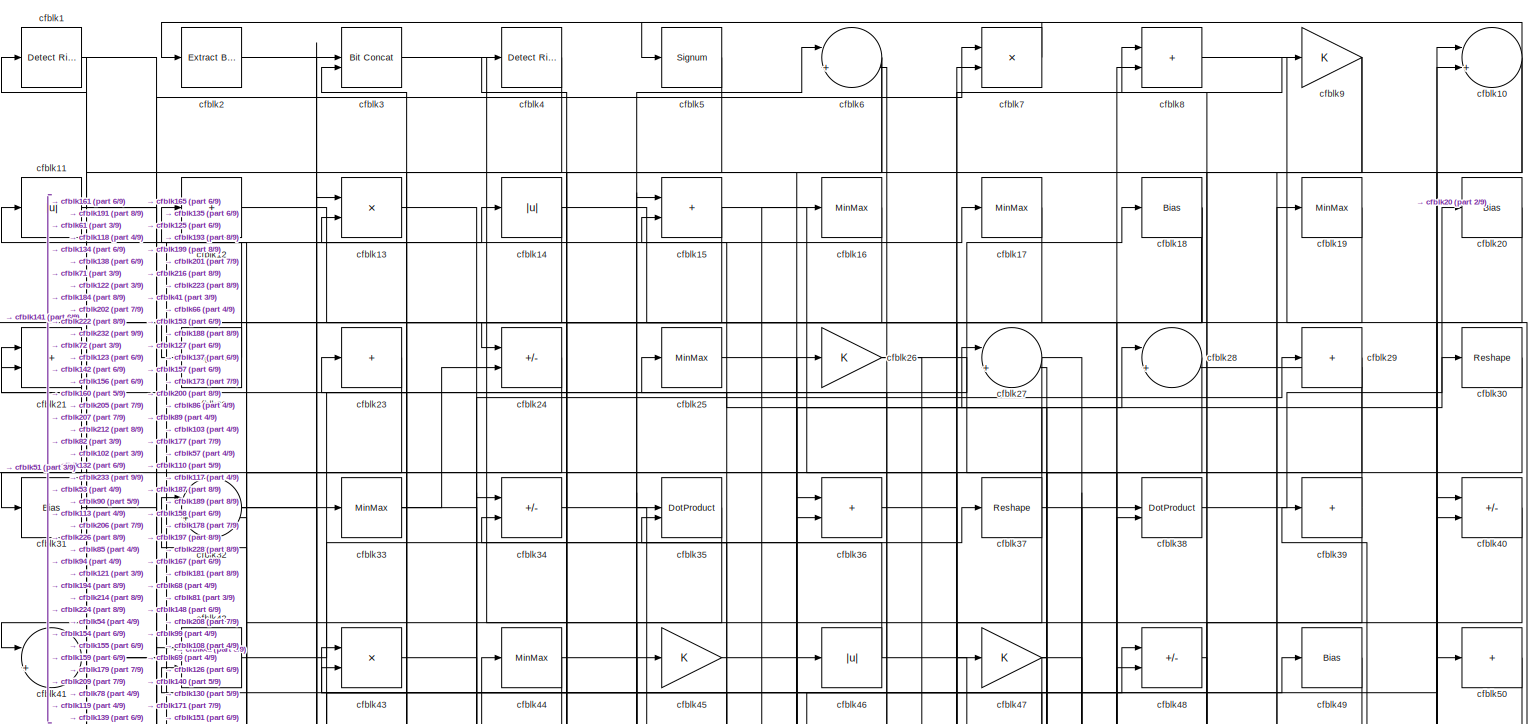
[diagram: root canvas - part 1/9, full width, top band]
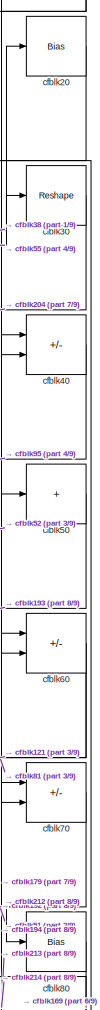
[diagram: root canvas - part 2/9, top right region]
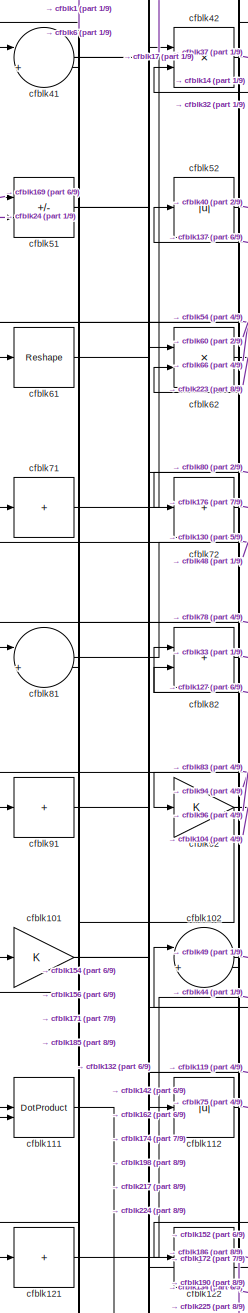
[diagram: root canvas - part 3/9, middle left region]
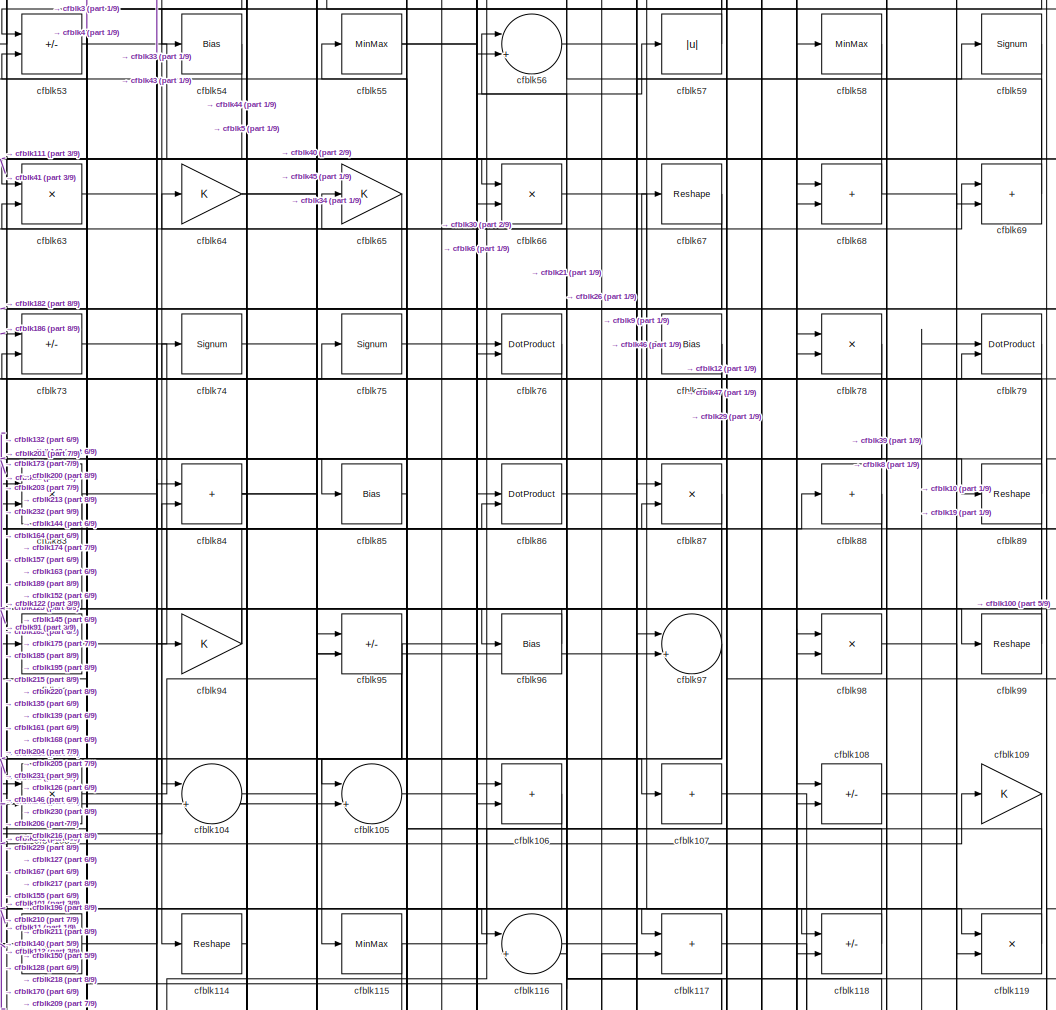
[diagram: root canvas - part 4/9, central region]
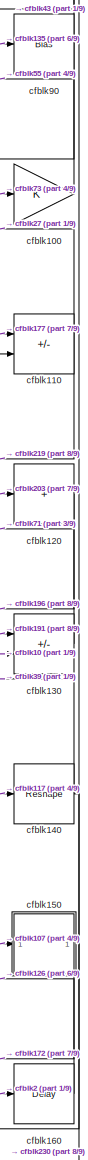
[diagram: root canvas - part 5/9, middle right region]
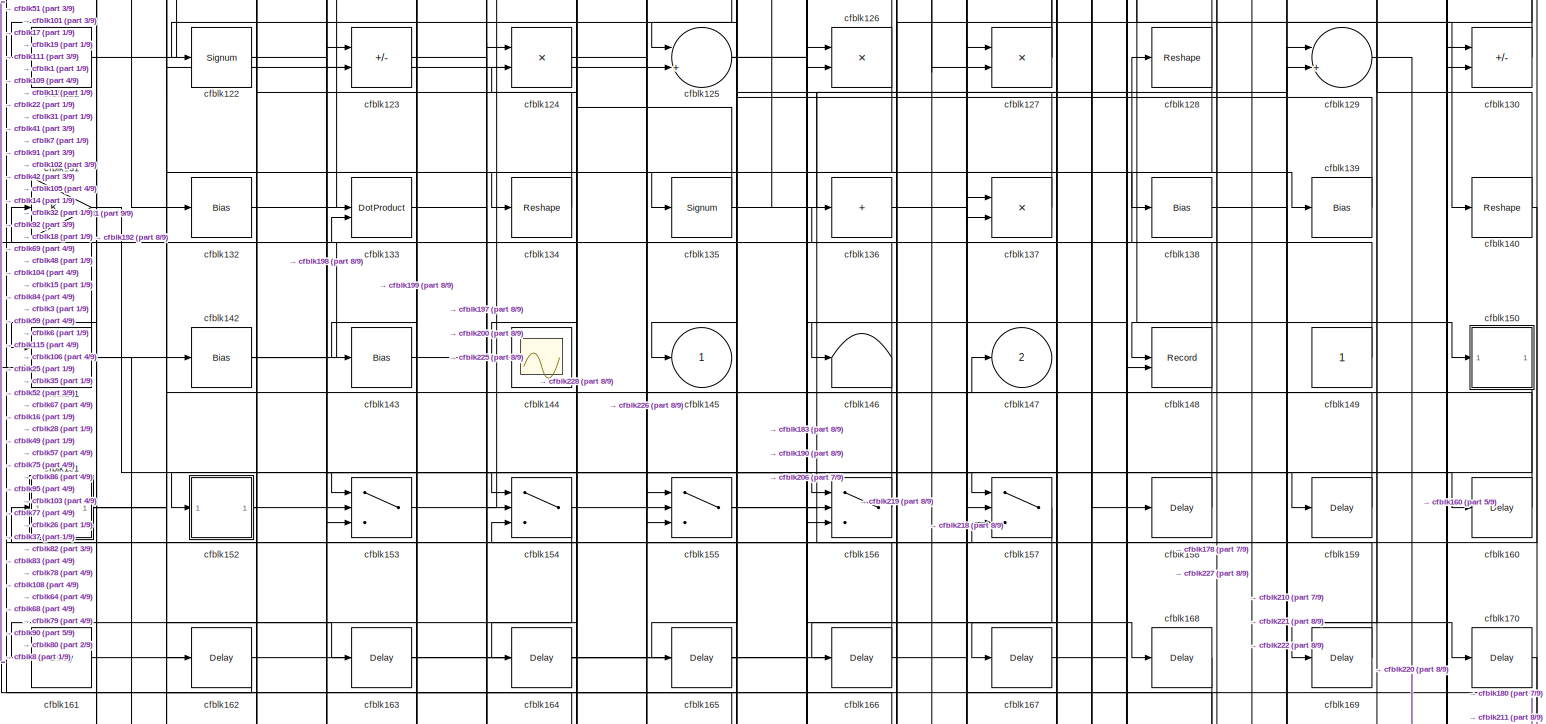
[diagram: root canvas - part 6/9, full width, middle band]
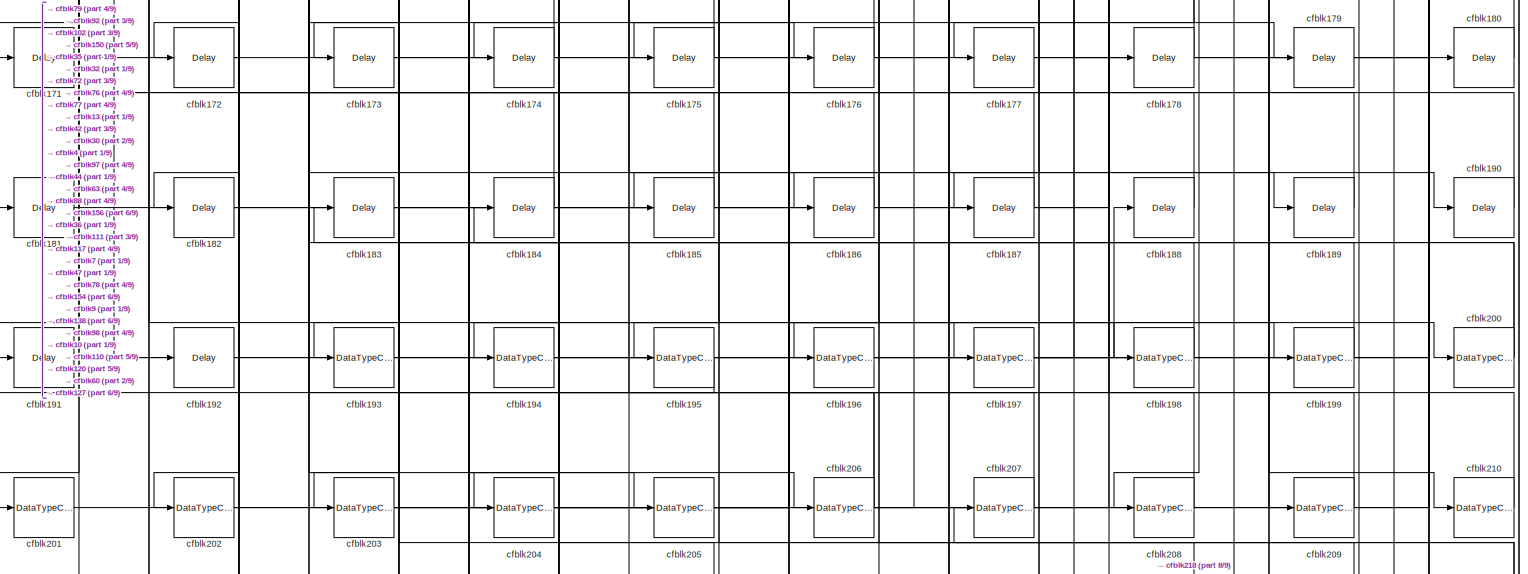
[diagram: root canvas - part 7/9, full width, bottom band]
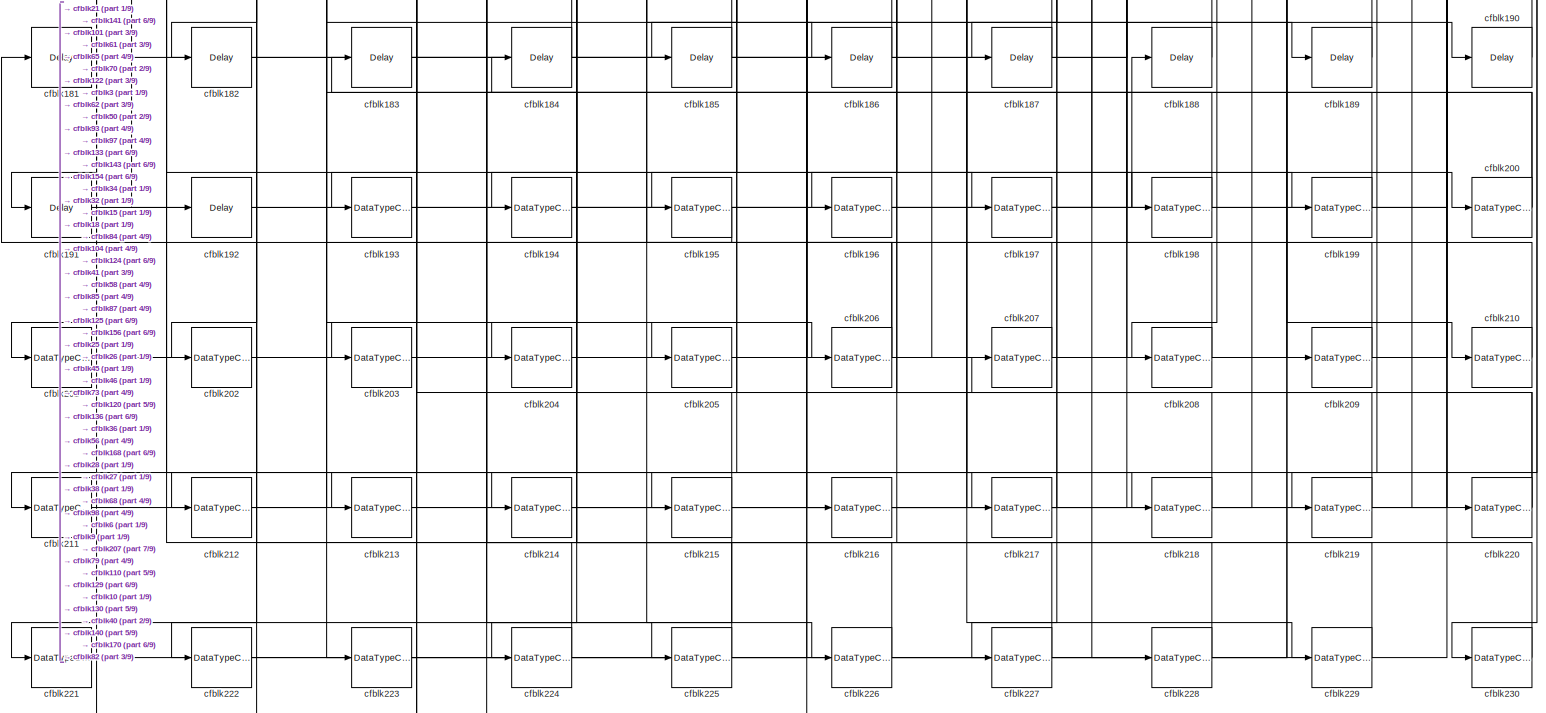
[diagram: root canvas - part 8/9, full width, bottom band]
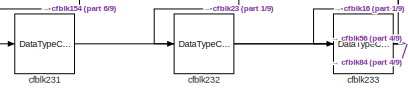
[diagram: root canvas - part 9/9, bottom left region]
MODEL slx_fc85e3098e70
KIND model
CONFIG AbsTol = auto
CONFIG EnableMultiTasking = off
CONFIG FixedStep = auto
CONFIG MaxStep = auto
CONFIG MinStep = auto
CONFIG RelTol = 1e-3
CONFIG SampleTimeConstraint = Unconstrained
CONFIG SolverName = VariableStepAuto
CONFIG StartTime = 0.0
CONFIG StopTime = 10.0
BLOCK [Reference] cfblk1  REF=hdlsllib/Logic and Bit
Operations/Detect Rise
Positive
  SourceBlock = hdlsllib/Logic and Bit\nOperations/Detect Rise\nPositive
  SourceType = Detect Rise Positive
BLOCK [Sum] cfblk10
  Inputs = |++
BLOCK [Gain] cfblk100
BLOCK [Gain] cfblk101
BLOCK [Sum] cfblk102
  Inputs = |++
BLOCK [Product] cfblk103
  Inputs = */
  RndMeth = Zero
  SaturateOnIntegerOverflow = on
BLOCK [Sum] cfblk104
  Inputs = |++
BLOCK [Sum] cfblk105
  Inputs = |++
BLOCK [Sum] cfblk106
  IconShape = rectangular
BLOCK [Sum] cfblk107
  IconShape = rectangular
  Inputs = +
BLOCK [Sum] cfblk108
  IconShape = rectangular
  Inputs = +-
BLOCK [Gain] cfblk109
BLOCK [Abs] cfblk11
  SaturateOnIntegerOverflow = off
BLOCK [Sum] cfblk110
  IconShape = rectangular
  Inputs = +-
BLOCK [DotProduct] cfblk111
  OutDataTypeStr = Inherit: Inherit via internal rule
BLOCK [Abs] cfblk112
  SaturateOnIntegerOverflow = off
BLOCK [Signum] cfblk113
BLOCK [Reshape] cfblk114
BLOCK [MinMax] cfblk115
BLOCK [Sum] cfblk116
  Inputs = |++
BLOCK [Sum] cfblk117
  IconShape = rectangular
BLOCK [Sum] cfblk118
  IconShape = rectangular
  Inputs = +-
BLOCK [Product] cfblk119
  Inputs = */
  RndMeth = Zero
  SaturateOnIntegerOverflow = on
BLOCK [Sum] cfblk12
  IconShape = rectangular
  Inputs = +
BLOCK [Sum] cfblk120
  IconShape = rectangular
  Inputs = +
BLOCK [Sum] cfblk121
  IconShape = rectangular
  Inputs = +
BLOCK [Signum] cfblk122
BLOCK [Sum] cfblk123
  IconShape = rectangular
  Inputs = +-
BLOCK [Product] cfblk124
  Inputs = */
  RndMeth = Zero
  SaturateOnIntegerOverflow = on
BLOCK [Sum] cfblk125
  Inputs = |++
BLOCK [Product] cfblk126
  Inputs = */
  RndMeth = Zero
  SaturateOnIntegerOverflow = on
BLOCK [Product] cfblk127
  Inputs = */
  RndMeth = Zero
  SaturateOnIntegerOverflow = on
BLOCK [Reshape] cfblk128
BLOCK [Sum] cfblk129
  Inputs = |++
BLOCK [Product] cfblk13
  Inputs = */
  RndMeth = Zero
  SaturateOnIntegerOverflow = on
BLOCK [Sum] cfblk130
  IconShape = rectangular
  Inputs = +-
BLOCK [Gain] cfblk131
BLOCK [Bias] cfblk132
  Bias = 0.0
  SaturateOnIntegerOverflow = off
BLOCK [DotProduct] cfblk133
  OutDataTypeStr = Inherit: Inherit via internal rule
BLOCK [Reshape] cfblk134
BLOCK [Signum] cfblk135
BLOCK [Sum] cfblk136
  IconShape = rectangular
  Inputs = +
BLOCK [Product] cfblk137
  Inputs = */
  RndMeth = Zero
  SaturateOnIntegerOverflow = on
BLOCK [Bias] cfblk138
  Bias = 0.0
  SaturateOnIntegerOverflow = off
BLOCK [Bias] cfblk139
  Bias = 0.0
  SaturateOnIntegerOverflow = off
BLOCK [Abs] cfblk14
  SaturateOnIntegerOverflow = off
BLOCK [Reshape] cfblk140
BLOCK [Sum] cfblk141
  IconShape = rectangular
BLOCK [Bias] cfblk142
  Bias = 0.0
  SaturateOnIntegerOverflow = off
BLOCK [Bias] cfblk143
  Bias = 0.0
  SaturateOnIntegerOverflow = off
BLOCK [Scope] cfblk144
  Floating = off
  NumInputPorts = 1
  ScopeSpecificationString = Simulink.scopes.TimeScopeBlockCfg('CurrentConfiguration', extmgr.ConfigurationSet(extmgr.Configuration('Core','General UI',true),extmgr.Configuration('Core','Source UI',true),extmgr.Configuration('Sources','WiredSimulink',true,'DataLoggingVariableName','ScopeData2','DataLoggingSaveFormat','Array','DataLoggingLimitDataPoints',true,'DataLoggingDecimation','1'),extmgr.Configuration('Visuals','Time Do...<+868ch>
BLOCK [Outport] cfblk145
  VectorParamsAs1DForOutWhenUnconnected = off
BLOCK [Terminator] cfblk146
BLOCK [Outport] cfblk147
  Port = 2
  VectorParamsAs1DForOutWhenUnconnected = off
BLOCK [Record] cfblk148
  CompatibilityTag = XY
  FileSettingsInternal = {"entries":[{"content":{"excelSettings":{"content":{},"type":"Streamout.ExcelSettings"}},"type":"Streamout.FileSettingStorage","uuid":""}],"packageUris":["http:\/\/schema.mathworks.com\/mf0\/streamout_blocks\/R2020a"],"version":"1.0"}
  Layout = [1 1]
  SignalsInternal = {"entries":[{"content":{"signals":[{"content":{"blockPath":[],"dimensions":[1],"domain":"","lineColor":"#a2142f","plots":[1],"port":1,"signalID":1628,"signalName":"XY Graph:1"},"type":"RecordBlkView.Signal","uuid":""},{"content":{"blockPath":[],"dimensions":[1],"domain":"","lineColor":"#139fff","plots":[1],"port":2,"signalID":1631,"signalName":"XY Graph:2"},"type":"RecordBlkView.Signal","uuid":""}...<+146ch>
  VisualizationBindings = {"xyplotplugin":{"info":[{"series":[{"bindingParametersList":[{"parameter":"X-Axis","signalID":1628,"signalName":"XY Graph:1"},{"parameter":"Y-Axis","signalID":1631,"signalName":"XY Graph:2"}],"seriesID":13576}],"subplotID":1}]}}
  st = -1
BLOCK [Constant] cfblk149
  SampleTime = -1
BLOCK [Sum] cfblk15
  IconShape = rectangular
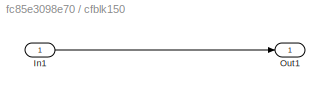
BLOCK [SubSystem] cfblk150
  LibrarySourceBlock = hdlsllib/Ports &\nSubsystems/Subsystem
BLOCK [Inport] cfblk150/In1
BLOCK [Outport] cfblk150/Out1
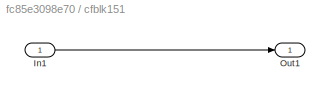
BLOCK [SubSystem] cfblk151
  LibrarySourceBlock = hdlsllib/Ports &\nSubsystems/Subsystem
BLOCK [Inport] cfblk151/In1
BLOCK [Outport] cfblk151/Out1
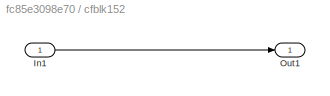
BLOCK [SubSystem] cfblk152
  LibrarySourceBlock = hdlsllib/Ports &\nSubsystems/Subsystem
BLOCK [Inport] cfblk152/In1
BLOCK [Outport] cfblk152/Out1
BLOCK [Switch] cfblk153
  InputSameDT = off
  SaturateOnIntegerOverflow = off
BLOCK [Switch] cfblk154
  InputSameDT = off
  SaturateOnIntegerOverflow = off
BLOCK [Switch] cfblk155
  InputSameDT = off
  SaturateOnIntegerOverflow = off
BLOCK [Switch] cfblk156
  InputSameDT = off
  SaturateOnIntegerOverflow = off
BLOCK [Switch] cfblk157
  InputSameDT = off
  SaturateOnIntegerOverflow = off
BLOCK [Delay] cfblk158
  InputPortMap = u0
  SampleTime = 1
BLOCK [Delay] cfblk159
  InputPortMap = u0
  SampleTime = 1
BLOCK [MinMax] cfblk16
BLOCK [Delay] cfblk160
  InputPortMap = u0
  SampleTime = 1
BLOCK [Delay] cfblk161
  InputPortMap = u0
  SampleTime = 1
BLOCK [Delay] cfblk162
  InputPortMap = u0
  SampleTime = 1
BLOCK [Delay] cfblk163
  InputPortMap = u0
  SampleTime = 1
BLOCK [Delay] cfblk164
  InputPortMap = u0
  SampleTime = 1
BLOCK [Delay] cfblk165
  InputPortMap = u0
  SampleTime = 1
BLOCK [Delay] cfblk166
  InputPortMap = u0
  SampleTime = 1
BLOCK [Delay] cfblk167
  InputPortMap = u0
  SampleTime = 1
BLOCK [Delay] cfblk168
  InputPortMap = u0
  SampleTime = 1
BLOCK [Delay] cfblk169
  InputPortMap = u0
  SampleTime = 1
BLOCK [MinMax] cfblk17
BLOCK [Delay] cfblk170
  InputPortMap = u0
  SampleTime = 1
BLOCK [Delay] cfblk171
  InputPortMap = u0
  SampleTime = 1
BLOCK [Delay] cfblk172
  InputPortMap = u0
  SampleTime = 1
BLOCK [Delay] cfblk173
  InputPortMap = u0
  SampleTime = 1
BLOCK [Delay] cfblk174
  InputPortMap = u0
  SampleTime = 1
BLOCK [Delay] cfblk175
  InputPortMap = u0
  SampleTime = 1
BLOCK [Delay] cfblk176
  InputPortMap = u0
  SampleTime = 1
BLOCK [Delay] cfblk177
  InputPortMap = u0
  SampleTime = 1
BLOCK [Delay] cfblk178
  InputPortMap = u0
  SampleTime = 1
BLOCK [Delay] cfblk179
  InputPortMap = u0
  SampleTime = 1
BLOCK [Bias] cfblk18
  Bias = 0.0
  SaturateOnIntegerOverflow = off
BLOCK [Delay] cfblk180
  InputPortMap = u0
  SampleTime = 1
BLOCK [Delay] cfblk181
  InputPortMap = u0
  SampleTime = 1
BLOCK [Delay] cfblk182
  InputPortMap = u0
  SampleTime = 1
BLOCK [Delay] cfblk183
  InputPortMap = u0
  SampleTime = 1
BLOCK [Delay] cfblk184
  InputPortMap = u0
  SampleTime = 1
BLOCK [Delay] cfblk185
  InputPortMap = u0
  SampleTime = 1
BLOCK [Delay] cfblk186
  InputPortMap = u0
  SampleTime = 1
BLOCK [Delay] cfblk187
  InputPortMap = u0
  SampleTime = 1
BLOCK [Delay] cfblk188
  InputPortMap = u0
  SampleTime = 1
BLOCK [Delay] cfblk189
  InputPortMap = u0
  SampleTime = 1
BLOCK [MinMax] cfblk19
BLOCK [Delay] cfblk190
  InputPortMap = u0
  SampleTime = 1
BLOCK [Delay] cfblk191
  InputPortMap = u0
  SampleTime = 1
BLOCK [Delay] cfblk192
  InputPortMap = u0
  SampleTime = 1
BLOCK [DataTypeConversion] cfblk193
  OutDataTypeStr = uint8
  RndMeth = Floor
  SaturateOnIntegerOverflow = off
BLOCK [DataTypeConversion] cfblk194
  OutDataTypeStr = uint8
  RndMeth = Floor
  SaturateOnIntegerOverflow = off
BLOCK [DataTypeConversion] cfblk195
  OutDataTypeStr = uint8
  RndMeth = Floor
  SaturateOnIntegerOverflow = off
BLOCK [DataTypeConversion] cfblk196
  OutDataTypeStr = uint8
  RndMeth = Floor
  SaturateOnIntegerOverflow = off
BLOCK [DataTypeConversion] cfblk197
  RndMeth = Floor
  SaturateOnIntegerOverflow = off
BLOCK [DataTypeConversion] cfblk198
  OutDataTypeStr = uint8
  RndMeth = Floor
  SaturateOnIntegerOverflow = off
BLOCK [DataTypeConversion] cfblk199
  OutDataTypeStr = uint8
  RndMeth = Floor
  SaturateOnIntegerOverflow = off
BLOCK [Reference] cfblk2  REF=simulink/Logic and Bit
Operations/Extract Bits
  LibrarySourceBlock = hdlsllib/Logic and Bit\nOperations/Extract Bits
  SourceBlock = simulink/Logic and Bit\nOperations/Extract Bits
  SourceType = Extract Bits
BLOCK [Bias] cfblk20
  Bias = 0.0
  SaturateOnIntegerOverflow = off
BLOCK [DataTypeConversion] cfblk200
  RndMeth = Floor
  SaturateOnIntegerOverflow = off
BLOCK [DataTypeConversion] cfblk201
  OutDataTypeStr = uint8
  RndMeth = Floor
  SaturateOnIntegerOverflow = off
BLOCK [DataTypeConversion] cfblk202
  OutDataTypeStr = uint8
  RndMeth = Floor
  SaturateOnIntegerOverflow = off
BLOCK [DataTypeConversion] cfblk203
  RndMeth = Floor
  SaturateOnIntegerOverflow = off
BLOCK [DataTypeConversion] cfblk204
  OutDataTypeStr = uint8
  RndMeth = Floor
  SaturateOnIntegerOverflow = off
BLOCK [DataTypeConversion] cfblk205
  OutDataTypeStr = uint8
  RndMeth = Floor
  SaturateOnIntegerOverflow = off
BLOCK [DataTypeConversion] cfblk206
  RndMeth = Floor
  SaturateOnIntegerOverflow = off
BLOCK [DataTypeConversion] cfblk207
  OutDataTypeStr = uint8
  RndMeth = Floor
  SaturateOnIntegerOverflow = off
BLOCK [DataTypeConversion] cfblk208
  OutDataTypeStr = uint8
  RndMeth = Floor
  SaturateOnIntegerOverflow = off
BLOCK [DataTypeConversion] cfblk209
  OutDataTypeStr = uint8
  RndMeth = Floor
  SaturateOnIntegerOverflow = off
BLOCK [Sum] cfblk21
  IconShape = rectangular
BLOCK [DataTypeConversion] cfblk210
  OutDataTypeStr = uint8
  RndMeth = Floor
  SaturateOnIntegerOverflow = off
BLOCK [DataTypeConversion] cfblk211
  OutDataTypeStr = uint8
  RndMeth = Floor
  SaturateOnIntegerOverflow = off
BLOCK [DataTypeConversion] cfblk212
  OutDataTypeStr = uint8
  RndMeth = Floor
  SaturateOnIntegerOverflow = off
BLOCK [DataTypeConversion] cfblk213
  OutDataTypeStr = uint8
  RndMeth = Floor
  SaturateOnIntegerOverflow = off
BLOCK [DataTypeConversion] cfblk214
  OutDataTypeStr = uint8
  RndMeth = Floor
  SaturateOnIntegerOverflow = off
BLOCK [DataTypeConversion] cfblk215
  RndMeth = Floor
  SaturateOnIntegerOverflow = off
BLOCK [DataTypeConversion] cfblk216
  OutDataTypeStr = uint8
  RndMeth = Floor
  SaturateOnIntegerOverflow = off
BLOCK [DataTypeConversion] cfblk217
  OutDataTypeStr = uint8
  RndMeth = Floor
  SaturateOnIntegerOverflow = off
BLOCK [DataTypeConversion] cfblk218
  RndMeth = Floor
  SaturateOnIntegerOverflow = off
BLOCK [DataTypeConversion] cfblk219
  OutDataTypeStr = uint8
  RndMeth = Floor
  SaturateOnIntegerOverflow = off
BLOCK [Signum] cfblk22
BLOCK [DataTypeConversion] cfblk220
  RndMeth = Floor
  SaturateOnIntegerOverflow = off
BLOCK [DataTypeConversion] cfblk221
  OutDataTypeStr = uint8
  RndMeth = Floor
  SaturateOnIntegerOverflow = off
BLOCK [DataTypeConversion] cfblk222
  OutDataTypeStr = uint8
  RndMeth = Floor
  SaturateOnIntegerOverflow = off
BLOCK [DataTypeConversion] cfblk223
  OutDataTypeStr = uint8
  RndMeth = Floor
  SaturateOnIntegerOverflow = off
BLOCK [DataTypeConversion] cfblk224
  OutDataTypeStr = uint8
  RndMeth = Floor
  SaturateOnIntegerOverflow = off
BLOCK [DataTypeConversion] cfblk225
  OutDataTypeStr = uint8
  RndMeth = Floor
  SaturateOnIntegerOverflow = off
BLOCK [DataTypeConversion] cfblk226
  RndMeth = Floor
  SaturateOnIntegerOverflow = off
BLOCK [DataTypeConversion] cfblk227
  OutDataTypeStr = uint8
  RndMeth = Floor
  SaturateOnIntegerOverflow = off
BLOCK [DataTypeConversion] cfblk228
  OutDataTypeStr = uint8
  RndMeth = Floor
  SaturateOnIntegerOverflow = off
BLOCK [DataTypeConversion] cfblk229
  OutDataTypeStr = uint8
  RndMeth = Floor
  SaturateOnIntegerOverflow = off
BLOCK [Sum] cfblk23
  IconShape = rectangular
  Inputs = +
BLOCK [DataTypeConversion] cfblk230
  OutDataTypeStr = uint8
  RndMeth = Floor
  SaturateOnIntegerOverflow = off
BLOCK [DataTypeConversion] cfblk231
  OutDataTypeStr = uint8
  RndMeth = Floor
  SaturateOnIntegerOverflow = off
BLOCK [DataTypeConversion] cfblk232
  OutDataTypeStr = uint8
  RndMeth = Floor
  SaturateOnIntegerOverflow = off
BLOCK [DataTypeConversion] cfblk233
  OutDataTypeStr = uint8
  RndMeth = Floor
  SaturateOnIntegerOverflow = off
BLOCK [Sum] cfblk24
  IconShape = rectangular
  Inputs = +-
BLOCK [MinMax] cfblk25
BLOCK [Gain] cfblk26
BLOCK [Sum] cfblk27
  Inputs = |++
BLOCK [Sum] cfblk28
  Inputs = |++
BLOCK [Sum] cfblk29
  IconShape = rectangular
  Inputs = +
BLOCK [Reference] cfblk3  REF=hdlsllib/Logic and Bit
Operations/Bit Concat
  SourceBlock = hdlsllib/Logic and Bit\nOperations/Bit Concat
  SourceType = Bit Concat
BLOCK [Reshape] cfblk30
BLOCK [Bias] cfblk31
  Bias = 0.0
  SaturateOnIntegerOverflow = off
BLOCK [Sum] cfblk32
  Inputs = |++
BLOCK [MinMax] cfblk33
BLOCK [Sum] cfblk34
  IconShape = rectangular
  Inputs = +-
BLOCK [DotProduct] cfblk35
  OutDataTypeStr = Inherit: Inherit via internal rule
BLOCK [Sum] cfblk36
  IconShape = rectangular
BLOCK [Reshape] cfblk37
BLOCK [DotProduct] cfblk38
  OutDataTypeStr = Inherit: Inherit via internal rule
BLOCK [Sum] cfblk39
  IconShape = rectangular
  Inputs = +
BLOCK [Reference] cfblk4  REF=hdlsllib/Logic and Bit
Operations/Detect Rise
Nonnegative
  SourceBlock = hdlsllib/Logic and Bit\nOperations/Detect Rise\nNonnegative
  SourceType = Detect Rise Nonnegative
BLOCK [Sum] cfblk40
  IconShape = rectangular
  Inputs = +-
BLOCK [Sum] cfblk41
  Inputs = |++
BLOCK [Product] cfblk42
  Inputs = */
  RndMeth = Zero
  SaturateOnIntegerOverflow = on
BLOCK [Product] cfblk43
  Inputs = */
  RndMeth = Zero
  SaturateOnIntegerOverflow = on
BLOCK [MinMax] cfblk44
BLOCK [Gain] cfblk45
BLOCK [Abs] cfblk46
  SaturateOnIntegerOverflow = off
BLOCK [Gain] cfblk47
BLOCK [Sum] cfblk48
  IconShape = rectangular
  Inputs = +-
BLOCK [Bias] cfblk49
  Bias = 0.0
  SaturateOnIntegerOverflow = off
BLOCK [Signum] cfblk5
BLOCK [Sum] cfblk50
  IconShape = rectangular
  Inputs = +
BLOCK [Sum] cfblk51
  IconShape = rectangular
  Inputs = +-
BLOCK [Abs] cfblk52
  SaturateOnIntegerOverflow = off
BLOCK [Sum] cfblk53
  IconShape = rectangular
  Inputs = +-
BLOCK [Bias] cfblk54
  Bias = 0.0
  SaturateOnIntegerOverflow = off
BLOCK [MinMax] cfblk55
BLOCK [Sum] cfblk56
  Inputs = |++
BLOCK [Abs] cfblk57
  SaturateOnIntegerOverflow = off
BLOCK [MinMax] cfblk58
BLOCK [Signum] cfblk59
BLOCK [Sum] cfblk6
  Inputs = |++
BLOCK [Sum] cfblk60
  IconShape = rectangular
  Inputs = +-
BLOCK [Reshape] cfblk61
BLOCK [Product] cfblk62
  Inputs = */
  RndMeth = Zero
  SaturateOnIntegerOverflow = on
BLOCK [Product] cfblk63
  Inputs = */
  RndMeth = Zero
  SaturateOnIntegerOverflow = on
BLOCK [Gain] cfblk64
BLOCK [Gain] cfblk65
BLOCK [Product] cfblk66
  Inputs = */
  RndMeth = Zero
  SaturateOnIntegerOverflow = on
BLOCK [Reshape] cfblk67
BLOCK [Sum] cfblk68
  IconShape = rectangular
BLOCK [Sum] cfblk69
  IconShape = rectangular
BLOCK [Product] cfblk7
  Inputs = */
  RndMeth = Zero
  SaturateOnIntegerOverflow = on
BLOCK [Sum] cfblk70
  IconShape = rectangular
  Inputs = +-
BLOCK [Sum] cfblk71
  IconShape = rectangular
  Inputs = +
BLOCK [Sum] cfblk72
  IconShape = rectangular
  Inputs = +
BLOCK [Sum] cfblk73
  IconShape = rectangular
  Inputs = +-
BLOCK [Signum] cfblk74
BLOCK [Signum] cfblk75
BLOCK [DotProduct] cfblk76
  OutDataTypeStr = Inherit: Inherit via internal rule
BLOCK [Bias] cfblk77
  Bias = 0.0
  SaturateOnIntegerOverflow = off
BLOCK [Product] cfblk78
  Inputs = */
  RndMeth = Zero
  SaturateOnIntegerOverflow = on
BLOCK [DotProduct] cfblk79
  OutDataTypeStr = Inherit: Inherit via internal rule
BLOCK [Sum] cfblk8
  IconShape = rectangular
BLOCK [Bias] cfblk80
  Bias = 0.0
  SaturateOnIntegerOverflow = off
BLOCK [Sum] cfblk81
  Inputs = |++
BLOCK [Sum] cfblk82
  IconShape = rectangular
BLOCK [Product] cfblk83
  Inputs = */
  RndMeth = Zero
  SaturateOnIntegerOverflow = on
BLOCK [Sum] cfblk84
  IconShape = rectangular
BLOCK [Bias] cfblk85
  Bias = 0.0
  SaturateOnIntegerOverflow = off
BLOCK [DotProduct] cfblk86
  OutDataTypeStr = Inherit: Inherit via internal rule
BLOCK [Product] cfblk87
  Inputs = */
  RndMeth = Zero
  SaturateOnIntegerOverflow = on
BLOCK [Sum] cfblk88
  IconShape = rectangular
  Inputs = +
BLOCK [Reshape] cfblk89
BLOCK [Gain] cfblk9
BLOCK [Bias] cfblk90
  Bias = 0.0
  SaturateOnIntegerOverflow = off
BLOCK [Sum] cfblk91
  IconShape = rectangular
  Inputs = +
BLOCK [Gain] cfblk92
BLOCK [Bias] cfblk93
  Bias = 0.0
  SaturateOnIntegerOverflow = off
BLOCK [Gain] cfblk94
BLOCK [Sum] cfblk95
  IconShape = rectangular
  Inputs = +-
BLOCK [Bias] cfblk96
  Bias = 0.0
  SaturateOnIntegerOverflow = off
BLOCK [Sum] cfblk97
  Inputs = |++
BLOCK [Product] cfblk98
  Inputs = */
  RndMeth = Zero
  SaturateOnIntegerOverflow = on
BLOCK [Reshape] cfblk99
LINE cfblk100:1 -> cfblk55:1
NET cfblk101:1 -> cfblk119:2, cfblk217:1
LINE cfblk102:1 -> cfblk49:1
LINE cfblk103:1 -> cfblk45:1
LINE cfblk104:1 -> cfblk189:1
LINE cfblk105:1 -> cfblk88:1
LINE cfblk106:1 -> cfblk145:1
LINE cfblk107:1 -> cfblk150:1
LINE cfblk108:1 -> cfblk19:1
LINE cfblk109:1 -> cfblk125:1
NET cfblk10:1 -> cfblk130:2, cfblk2:1, cfblk69:2
NET cfblk110:1 -> cfblk219:1, cfblk27:2
LINE cfblk111:1 -> cfblk132:1
LINE cfblk112:1 -> cfblk75:1
LINE cfblk113:1 -> cfblk29:1
LINE cfblk114:1 -> cfblk74:1
NET cfblk115:1 -> cfblk152:1, cfblk97:1
LINE cfblk116:1 -> cfblk59:1
LINE cfblk117:1 -> cfblk140:1
LINE cfblk118:1 -> cfblk83:1
LINE cfblk119:1 -> cfblk43:1
NET cfblk11:1 -> cfblk118:2, cfblk138:1
LINE cfblk120:1 -> cfblk196:1
LINE cfblk121:1 -> cfblk44:1
NET cfblk122:1 -> cfblk186:1, cfblk32:1
LINE cfblk123:1 -> cfblk159:1
LINE cfblk124:1 -> cfblk226:1
NET cfblk125:1 -> cfblk190:1, cfblk28:1, cfblk57:1
NET cfblk126:1 -> cfblk103:2, cfblk135:1
NET cfblk127:1 -> cfblk82:1, cfblk83:2
NET cfblk128:1 -> cfblk153:2, cfblk64:1
LINE cfblk129:1 -> cfblk220:1
LINE cfblk12:1 -> cfblk68:1
LINE cfblk130:1 -> cfblk71:1
LINE cfblk131:1 -> cfblk153:1
NET cfblk132:1 -> cfblk18:1, cfblk69:1
LINE cfblk133:1 -> cfblk197:1
LINE cfblk134:1 -> cfblk42:2
NET cfblk135:1 -> cfblk104:2, cfblk148:2, cfblk16:1, cfblk79:2, cfblk90:1
LINE cfblk136:1 -> cfblk218:1
LINE cfblk137:1 -> cfblk52:1
LINE cfblk138:1 -> cfblk210:1
LINE cfblk139:1 -> cfblk25:1
LINE cfblk13:1 -> cfblk206:1
NET cfblk140:1 -> cfblk230:1, cfblk39:1
NET cfblk141:1 -> cfblk109:1, cfblk192:1, cfblk22:1
NET cfblk142:1 -> cfblk105:2, cfblk128:1, cfblk14:1
LINE cfblk143:1 -> cfblk225:1
LINE cfblk149:1 -> cfblk131:1
NET cfblk14:1 -> cfblk47:1, cfblk72:1
LINE cfblk150/In1:1 -> cfblk150/Out1:1
LINE cfblk150:1 -> cfblk172:1
LINE cfblk151/In1:1 -> cfblk151/Out1:1
NET cfblk151:1 -> cfblk147:1, cfblk163:1, cfblk7:1
LINE cfblk152/In1:1 -> cfblk152/Out1:1
NET cfblk152:1 -> cfblk102:2, cfblk123:1
LINE cfblk153:1 -> cfblk48:1
NET cfblk154:1 -> cfblk231:1, cfblk6:1
NET cfblk155:1 -> cfblk108:2, cfblk157:3
LINE cfblk156:1 -> cfblk101:1
LINE cfblk157:1 -> cfblk166:1
LINE cfblk158:1 -> cfblk1:1
LINE cfblk159:1 -> cfblk15:1
NET cfblk15:1 -> cfblk137:2, cfblk214:1
LINE cfblk160:1 -> cfblk126:1
LINE cfblk161:1 -> cfblk86:1
LINE cfblk162:1 -> cfblk141:2
LINE cfblk163:1 -> cfblk95:1
LINE cfblk164:1 -> cfblk137:1
LINE cfblk165:1 -> cfblk35:2
LINE cfblk166:1 -> cfblk155:1
LINE cfblk167:1 -> cfblk8:2
LINE cfblk168:1 -> cfblk227:1
LINE cfblk169:1 -> cfblk51:1
LINE cfblk16:1 -> cfblk233:1
LINE cfblk170:1 -> cfblk211:1
LINE cfblk171:1 -> cfblk10:1
LINE cfblk172:1 -> cfblk102:1
LINE cfblk173:1 -> cfblk7:2
LINE cfblk174:1 -> cfblk42:1
LINE cfblk175:1 -> cfblk63:2
LINE cfblk176:1 -> cfblk111:1
LINE cfblk177:1 -> cfblk110:1
LINE cfblk178:1 -> cfblk154:3
LINE cfblk179:1 -> cfblk60:1
LINE cfblk17:1 -> cfblk141:1
LINE cfblk180:1 -> cfblk127:1
LINE cfblk181:1 -> cfblk38:2
LINE cfblk182:1 -> cfblk68:2
LINE cfblk183:1 -> cfblk156:3
LINE cfblk184:1 -> cfblk32:2
LINE cfblk185:1 -> cfblk41:2
LINE cfblk186:1 -> cfblk73:1
LINE cfblk187:1 -> cfblk21:2
LINE cfblk188:1 -> cfblk6:2
LINE cfblk189:1 -> cfblk27:1
NET cfblk18:1 -> cfblk123:2, cfblk224:1, cfblk24:1
LINE cfblk190:1 -> cfblk82:2
LINE cfblk191:1 -> cfblk130:1
LINE cfblk192:1 -> cfblk40:2
LINE cfblk193:1 -> cfblk26:1
LINE cfblk194:1 -> cfblk50:1
LINE cfblk195:1 -> cfblk181:1
LINE cfblk196:1 -> cfblk58:1
NET cfblk197:1 -> cfblk188:1, cfblk38:1
LINE cfblk198:1 -> cfblk133:1
LINE cfblk199:1 -> cfblk133:2
LINE cfblk19:1 -> cfblk161:1
NET cfblk1:1 -> cfblk134:1, cfblk61:1
NET cfblk200:1 -> cfblk154:2, cfblk93:1
LINE cfblk201:1 -> cfblk36:1
LINE cfblk202:1 -> cfblk36:2
NET cfblk203:1 -> cfblk120:1, cfblk180:1
LINE cfblk204:1 -> cfblk76:1
LINE cfblk205:1 -> cfblk76:2
NET cfblk206:1 -> cfblk117:2, cfblk156:2, cfblk4:1, cfblk78:2
LINE cfblk207:1 -> cfblk13:1
LINE cfblk208:1 -> cfblk13:2
LINE cfblk209:1 -> cfblk35:1
LINE cfblk20:1 -> cfblk60:2
LINE cfblk210:1 -> cfblk98:1
LINE cfblk211:1 -> cfblk98:2
LINE cfblk212:1 -> cfblk3:1
LINE cfblk213:1 -> cfblk70:1
LINE cfblk214:1 -> cfblk70:2
NET cfblk215:1 -> cfblk184:1, cfblk221:1
LINE cfblk216:1 -> cfblk87:1
LINE cfblk217:1 -> cfblk87:2
NET cfblk218:1 -> cfblk207:1, cfblk79:1
LINE cfblk219:1 -> cfblk136:1
NET cfblk21:1 -> cfblk191:1, cfblk31:1
NET cfblk220:1 -> cfblk183:1, cfblk65:1
LINE cfblk221:1 -> cfblk129:1
LINE cfblk222:1 -> cfblk129:2
LINE cfblk223:1 -> cfblk46:1
LINE cfblk224:1 -> cfblk62:1
LINE cfblk225:1 -> cfblk62:2
NET cfblk226:1 -> cfblk10:2, cfblk34:1
LINE cfblk227:1 -> cfblk124:1
LINE cfblk228:1 -> cfblk124:2
LINE cfblk229:1 -> cfblk84:2
LINE cfblk22:1 -> cfblk11:1
LINE cfblk230:1 -> cfblk56:1
LINE cfblk231:1 -> cfblk56:2
LINE cfblk232:1 -> cfblk84:1
LINE cfblk233:1 -> cfblk23:1
LINE cfblk23:1 -> cfblk232:1
LINE cfblk24:1 -> cfblk51:2
LINE cfblk25:1 -> cfblk216:1
NET cfblk26:1 -> cfblk108:1, cfblk127:2
NET cfblk27:1 -> cfblk222:1, cfblk228:1
LINE cfblk28:1 -> cfblk187:1
LINE cfblk29:1 -> cfblk117:1
LINE cfblk2:1 -> cfblk160:1
LINE cfblk30:1 -> cfblk204:1
LINE cfblk31:1 -> cfblk125:2
NET cfblk32:1 -> cfblk156:1, cfblk205:1
NET cfblk33:1 -> cfblk24:2, cfblk94:1
LINE cfblk34:1 -> cfblk78:1
LINE cfblk35:1 -> cfblk202:1
LINE cfblk36:1 -> cfblk200:1
NET cfblk37:1 -> cfblk157:2, cfblk158:1, cfblk15:2
LINE cfblk38:1 -> cfblk20:1
NET cfblk39:1 -> cfblk118:1, cfblk28:2
LINE cfblk3:1 -> cfblk155:2
LINE cfblk40:1 -> cfblk95:2
NET cfblk41:1 -> cfblk142:1, cfblk66:1
LINE cfblk42:1 -> cfblk37:1
LINE cfblk43:1 -> cfblk85:1
NET cfblk44:1 -> cfblk113:1, cfblk179:1
LINE cfblk45:1 -> cfblk199:1
NET cfblk46:1 -> cfblk34:2, cfblk89:1
NET cfblk47:1 -> cfblk103:1, cfblk177:1, cfblk178:1
LINE cfblk48:1 -> cfblk148:1
LINE cfblk49:1 -> cfblk126:2
LINE cfblk4:1 -> cfblk53:1
LINE cfblk50:1 -> cfblk193:1
NET cfblk51:1 -> cfblk112:1, cfblk80:1
LINE cfblk52:1 -> cfblk40:1
LINE cfblk53:1 -> cfblk106:1
LINE cfblk54:1 -> cfblk111:2
NET cfblk55:1 -> cfblk30:1, cfblk99:1
LINE cfblk56:1 -> cfblk229:1
LINE cfblk57:1 -> cfblk12:1
LINE cfblk58:1 -> cfblk195:1
LINE cfblk59:1 -> cfblk155:3
LINE cfblk5:1 -> cfblk54:1
NET cfblk60:1 -> cfblk121:1, cfblk81:2
LINE cfblk61:1 -> cfblk198:1
LINE cfblk62:1 -> cfblk223:1
LINE cfblk63:1 -> cfblk96:1
NET cfblk64:1 -> cfblk77:1, cfblk97:2
LINE cfblk65:1 -> cfblk182:1
LINE cfblk66:1 -> cfblk119:1
NET cfblk67:1 -> cfblk164:1, cfblk165:1
NET cfblk68:1 -> cfblk170:1, cfblk63:1
LINE cfblk69:1 -> cfblk21:1
NET cfblk6:1 -> cfblk41:1, cfblk66:2
LINE cfblk70:1 -> cfblk212:1
LINE cfblk71:1 -> cfblk17:1
LINE cfblk72:1 -> cfblk176:1
LINE cfblk73:1 -> cfblk100:1
LINE cfblk74:1 -> cfblk106:2
LINE cfblk75:1 -> cfblk168:1
LINE cfblk76:1 -> cfblk203:1
NET cfblk77:1 -> cfblk143:1, cfblk146:1, cfblk173:1
NET cfblk78:1 -> cfblk167:1, cfblk81:1
LINE cfblk79:1 -> cfblk201:1
LINE cfblk7:1 -> cfblk5:1
LINE cfblk80:1 -> cfblk169:1
LINE cfblk81:1 -> cfblk48:2
LINE cfblk82:1 -> cfblk33:1
NET cfblk83:1 -> cfblk116:1, cfblk122:1
NET cfblk84:1 -> cfblk107:1, cfblk144:1, cfblk157:1
LINE cfblk85:1 -> cfblk185:1
LINE cfblk86:1 -> cfblk9:1
LINE cfblk87:1 -> cfblk215:1
NET cfblk88:1 -> cfblk114:1, cfblk175:1
NET cfblk89:1 -> cfblk116:2, cfblk3:2, cfblk67:1
LINE cfblk8:1 -> cfblk151:1
NET cfblk90:1 -> cfblk110:2, cfblk43:2
LINE cfblk91:1 -> cfblk162:1
NET cfblk92:1 -> cfblk104:1, cfblk154:1, cfblk171:1
LINE cfblk93:1 -> cfblk86:2
NET cfblk94:1 -> cfblk73:2, cfblk91:1
NET cfblk95:1 -> cfblk105:1, cfblk115:1, cfblk139:1, cfblk153:3
LINE cfblk96:1 -> cfblk92:1
NET cfblk97:1 -> cfblk174:1, cfblk213:1, cfblk53:2
LINE cfblk98:1 -> cfblk209:1
LINE cfblk99:1 -> cfblk8:1
NET cfblk9:1 -> cfblk194:1, cfblk208:1
note: NET lines group one-source signal fan-out (src -> all destinations, sorted); 1:1 wires keep LINE
